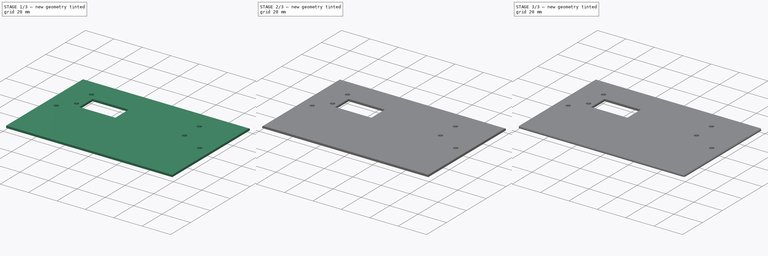
[diagram: build sequence overview — one tinted view per stage of 3, left to right]
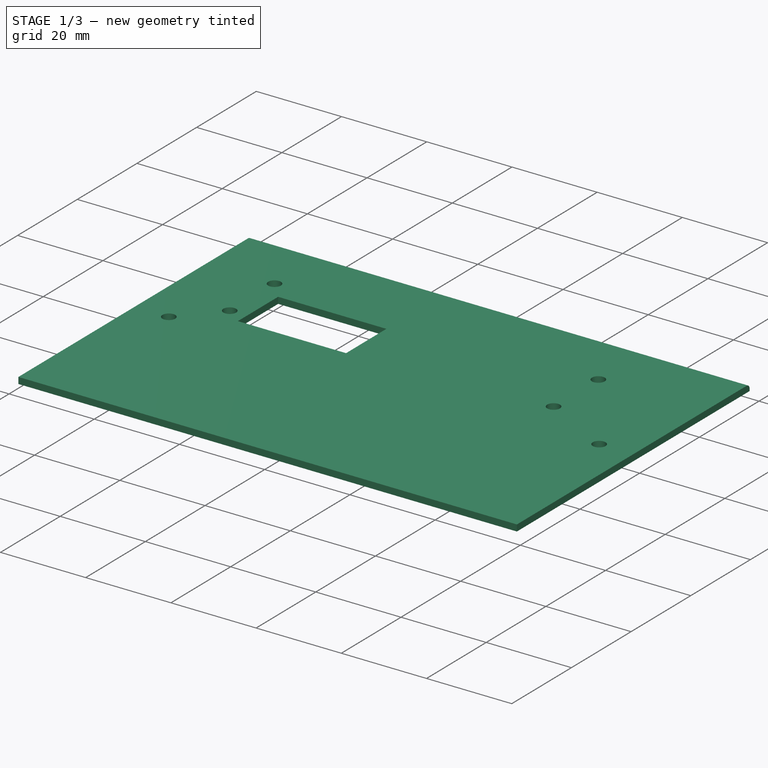
[diagram: stage 1 of 3 — iso view after this stage's code; geometry added in this stage tinted green]
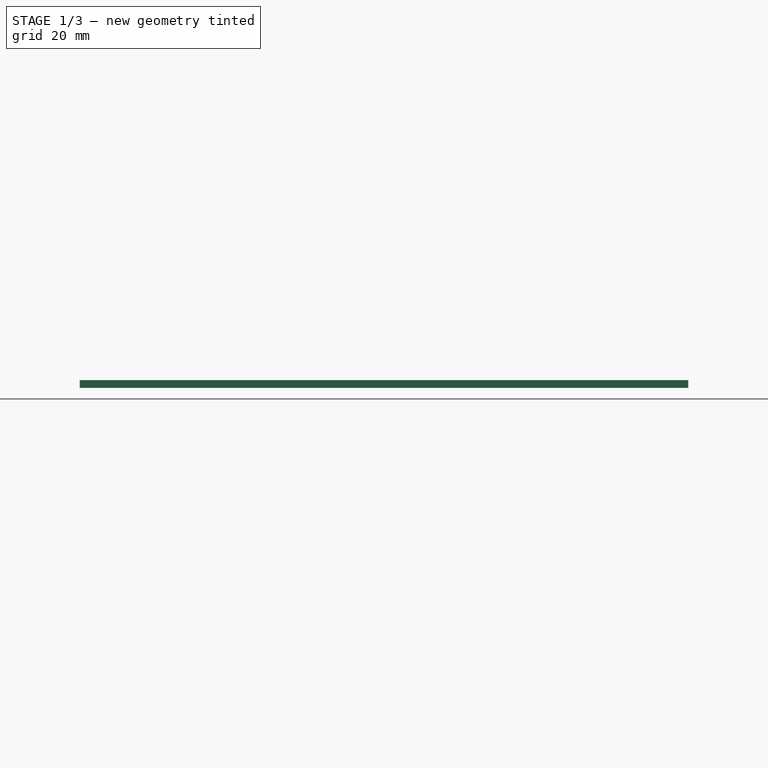
[diagram: stage 1 of 3 — front view after this stage's code; geometry added in this stage tinted green]
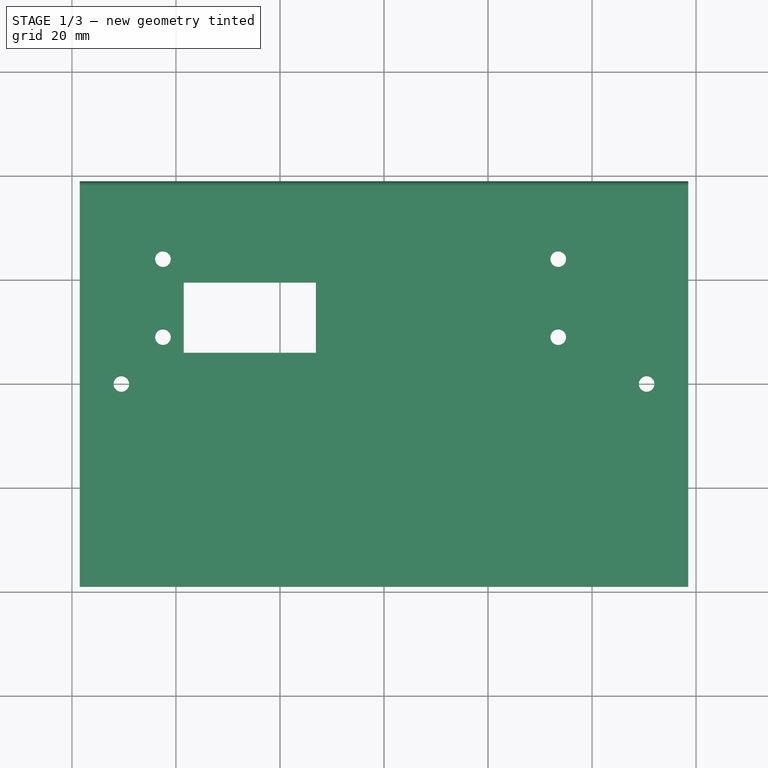
[diagram: stage 1 of 3 — top view after this stage's code; geometry added in this stage tinted green]
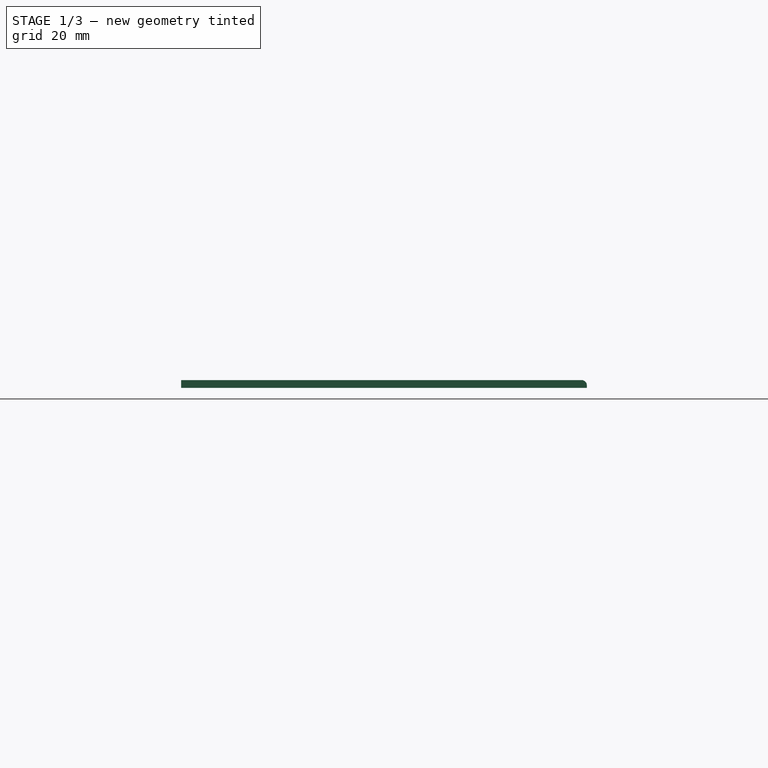
[diagram: stage 1 of 3 — right view after this stage's code; geometry added in this stage tinted green]
FCSTD DOCUMENT  (FreeCAD 0.19R24291 (Git))
Label: gateway box v1
License: All rights reserved
LicenseURL: http://en.wikipedia.org/wiki/All_rights_reserved
objects: TechDraw::DrawViewDimension×9, PartDesign::Fillet×4, Sketcher::SketchObject×1, PartDesign::Pad×1, TechDraw::DrawSVGTemplate×1, TechDraw::DrawViewPart×1, TechDraw::DrawPage×1, PartDesign::Body×1
note: 12 computed .brp shape members not serialized (recipe doc carries the construction recipe); baked Part::Feature solids carry a one-line shape summary decoded from their .brp

FEATURE [Sketcher::SketchObject] Sketch
  FullyConstrained = true
  MapMode = 5
  Support = -> [XY_Plane]
  sketch-geometry (15):
    g0: LineSegment StartX=-58.5 StartY=39 StartZ=0 EndX=58.5 EndY=39 EndZ=0
    g1: LineSegment StartX=58.5 StartY=39 StartZ=0 EndX=58.5 EndY=-39 EndZ=0
    g2: LineSegment StartX=58.5 StartY=-39 StartZ=0 EndX=-58.5 EndY=-39 EndZ=0
    g3: LineSegment StartX=-58.5 StartY=-39 StartZ=0 EndX=-58.5 EndY=39 EndZ=0
    g4: Circle CenterX=-50.5 CenterY=-3.7e-15 CenterZ=0 NormalX=0 NormalY=0 NormalZ=1 AngleXU=0 Radius=1.5
    g5: Circle CenterX=50.5 CenterY=-3.7e-15 CenterZ=0 NormalX=0 NormalY=0 NormalZ=1 AngleXU=0 Radius=1.5
    g6: Circle CenterX=-42.5 CenterY=24 CenterZ=0 NormalX=0 NormalY=0 NormalZ=1 AngleXU=0 Radius=1.5
    g7: Circle CenterX=-42.5 CenterY=9 CenterZ=0 NormalX=0 NormalY=0 NormalZ=1 AngleXU=0 Radius=1.5
    g8: Circle CenterX=33.5 CenterY=24 CenterZ=0 NormalX=0 NormalY=0 NormalZ=1 AngleXU=0 Radius=1.5
    g9: Circle CenterX=33.5 CenterY=9 CenterZ=0 NormalX=0 NormalY=0 NormalZ=1 AngleXU=0 Radius=1.5
    g10: LineSegment StartX=-38.5 StartY=19.5 StartZ=0 EndX=-13.1 EndY=19.5 EndZ=0
    g11: LineSegment StartX=-13.1 StartY=19.5 StartZ=0 EndX=-13.1 EndY=6 EndZ=0
    g12: LineSegment StartX=-13.1 StartY=6 StartZ=0 EndX=-38.5 EndY=6 EndZ=0
    g13: LineSegment StartX=-38.5 StartY=6 StartZ=0 EndX=-38.5 EndY=19.5 EndZ=0
    g14: GeomPoint X=-42.5 Y=24 Z=0
  constraints (42):
    c: Coincident(g0,g1)
    c: Coincident(g1,g2)
    c: Coincident(g2,g3)
    c: Coincident(g3,g0)
    c: Horizontal(g0)
    c: Horizontal(g2)
    c: Vertical(g1)
    c: Vertical(g3)
    c: DistanceX(g0,g0) = 117
    c: DistanceY(g3,g3) = 78
    c: Coincident(g10,g11)
    c: Coincident(g11,g12)
    c: Coincident(g12,g13)
    c: Coincident(g13,g10)
    c: Horizontal(g10)
    c: Horizontal(g12)
    c: Vertical(g11)
    c: Vertical(g13)
    c: Symmetric(g0,g1,g-1)
    c: Radius(g6) = 1.5
    c: Radius(g7) = 1.5
    c: Radius(g8) = 1.5
    c: Radius(g9) = 1.5
    c: DistanceX(g12,g12) = 25.4
    c: DistanceY(g11,g11) = 13.5
    c: DistanceY(g10,g0) = 19.5
    c: DistanceY(g6,g0) = 15
    c: DistanceY(g7,g6) = 15
    c: Vertical(g6,g7)
    c: Vertical(g8,g9)
    c: DistanceX(g0,g6) = 16
    c: DistanceX(g6,g8) = 76
    c: DistanceX(g0,g10) = 20
    c: Radius(g4) = 1.5
    c: Radius(g5) = 1.5
    c: DistanceX(g5,g0) = 8
    c: DistanceX(g0,g4) = 8
    c: Horizontal(g6,g8)
    c: Horizontal(g4,g5)
    c: Horizontal(g7,g9)
    c: DistanceY(g4,g0) = 39
    c: Coincident(g14,g6)
FEATURE [PartDesign::Pad] Pad
  Direction = (1,1,1)
  Length = 1.5
  Length2 = 100
  Profile = -> Sketch
  Type = 0
FEATURE [TechDraw::DrawSVGTemplate] Template
  EditableTexts = Designed_by_Name=Pete; Drawing_number=Naiad GW 001; FC-Date=26 July 2021; FC-SC=Scale; FC-SH=1 of 1; FC-Title=Gateway box lid with Oled; Weight=Weight
  Height = 210
  Orientation = 1
  Width = 297
FEATURE [TechDraw::DrawViewPart] View
  CoarseView = false
  Direction = (0,0,1)
  Focus = 100
  HardHidden = false
  IsoCount = 0
  IsoHidden = false
  IsoVisible = true
  LockPosition = false
  Perspective = false
  Rotation = 0
  ScaleType = 0
  SeamHidden = false
  SeamVisible = true
  SmoothHidden = false
  SmoothVisible = true
  Source = -> [Sketch]
  X = 100.82
  XDirection = (1,0,0)
  Y = 119.976
FEATURE [TechDraw::DrawViewDimension] Dimension
  Arbitrary = false
  ArbitraryTolerances = false
  EqualTolerance = true
  FormatSpec = %.2f
  FormatSpecOverTolerance = %+.2f
  FormatSpecUnderTolerance = %+.2f
  Inverted = false
  LockPosition = false
  MeasureType = 1
  OverTolerance = 0
  References2D = -> [View]
  Rotation = 0
  ScaleType = 0
  TheoreticalExact = false
  Type = 1
  UnderTolerance = 0
  X = -7.87783
  Y = 74.0988
FEATURE [TechDraw::DrawViewDimension] Dimension001
  Arbitrary = false
  ArbitraryTolerances = false
  EqualTolerance = true
  FormatSpec = %.2f
  FormatSpecOverTolerance = %+.2f
  FormatSpecUnderTolerance = %+.2f
  Inverted = false
  LockPosition = false
  MeasureType = 1
  OverTolerance = 0
  References2D = -> [View]
  Rotation = 0
  ScaleType = 0
  TheoreticalExact = false
  Type = 1
  UnderTolerance = 0
  X = -50.8407
  Y = 48.2925
FEATURE [TechDraw::DrawViewDimension] Dimension002
  Arbitrary = false
  ArbitraryTolerances = false
  EqualTolerance = true
  FormatSpec = %.2f
  FormatSpecOverTolerance = %+.2f
  FormatSpecUnderTolerance = %+.2f
  Inverted = false
  LockPosition = false
  MeasureType = 1
  OverTolerance = 0
  References2D = -> [View]
  Rotation = 0
  ScaleType = 0
  TheoreticalExact = false
  Type = 1
  UnderTolerance = 0
  X = -49.53
  Y = 54.72
FEATURE [TechDraw::DrawViewDimension] Dimension003
  Arbitrary = false
  ArbitraryTolerances = false
  EqualTolerance = true
  FormatSpec = %.2f
  FormatSpecOverTolerance = %+.2f
  FormatSpecUnderTolerance = %+.2f
  Inverted = false
  LockPosition = false
  MeasureType = 1
  OverTolerance = 0
  References2D = -> [View]
  Rotation = 0
  ScaleType = 0
  TheoreticalExact = false
  Type = 1
  UnderTolerance = 0
  X = -31.996
  Y = 60.9611
FEATURE [TechDraw::DrawViewDimension] Dimension004
  Arbitrary = false
  ArbitraryTolerances = false
  EqualTolerance = true
  FormatSpec = %.2f
  FormatSpecOverTolerance = %+.2f
  FormatSpecUnderTolerance = %+.2f
  Inverted = false
  LockPosition = false
  MeasureType = 1
  OverTolerance = 0
  References2D = -> [View]
  Rotation = 0
  ScaleType = 0
  TheoreticalExact = false
  Type = 2
  UnderTolerance = 0
  X = -65.4602
  Y = 33.2489
FEATURE [TechDraw::DrawViewDimension] Dimension005
  Arbitrary = false
  ArbitraryTolerances = false
  EqualTolerance = true
  FormatSpec = %.2f
  FormatSpecOverTolerance = %+.2f
  FormatSpecUnderTolerance = %+.2f
  Inverted = false
  LockPosition = false
  MeasureType = 1
  OverTolerance = 0
  References2D = -> [View]
  Rotation = 0
  ScaleType = 0
  TheoreticalExact = false
  Type = 2
  UnderTolerance = 0
  X = -71.3667
  Y = 31.4681
FEATURE [TechDraw::DrawViewDimension] Dimension006
  Arbitrary = false
  ArbitraryTolerances = false
  EqualTolerance = true
  FormatSpec = %.2f
  FormatSpecOverTolerance = %+.2f
  FormatSpecUnderTolerance = %+.2f
  Inverted = false
  LockPosition = false
  MeasureType = 1
  OverTolerance = 0
  References2D = -> [View]
  Rotation = 0
  ScaleType = 0
  TheoreticalExact = false
  Type = 2
  UnderTolerance = 0
  X = -85.4205
  Y = 24.5048
FEATURE [TechDraw::DrawViewDimension] Dimension007
  Arbitrary = false
  ArbitraryTolerances = false
  EqualTolerance = true
  FormatSpec = %.2f
  FormatSpecOverTolerance = %+.2f
  FormatSpecUnderTolerance = %+.2f
  Inverted = false
  LockPosition = false
  MeasureType = 1
  OverTolerance = 0
  References2D = -> [View]
  Rotation = 0
  ScaleType = 0
  TheoreticalExact = false
  Type = 2
  UnderTolerance = 0
  X = -78.0008
  Y = 23.4028
FEATURE [TechDraw::DrawViewDimension] Dimension008
  Arbitrary = false
  ArbitraryTolerances = false
  EqualTolerance = true
  FormatSpec = %.2f
  FormatSpecOverTolerance = %+.2f
  FormatSpecUnderTolerance = %+.2f
  Inverted = false
  LockPosition = false
  MeasureType = 1
  OverTolerance = 0
  References2D = -> [View]
  Rotation = 0
  ScaleType = 0
  TheoreticalExact = false
  Type = 1
  UnderTolerance = 0
  X = -14.5842
  Y = 67.5081
FEATURE [TechDraw::DrawPage] Page
  KeepUpdated = true
  NextBalloonIndex = 1
  ProjectionType = 0
  Template = -> Template
  Views = -> [View,Dimension,Dimension001,Dimension002,Dimension003,Dimension004,Dimension005,Dimension006,Dimension007,Dimension008]
FEATURE [PartDesign::Fillet] Fillet
  Base = -> Pad [Edge4]
  BaseFeature = -> Pad
  Radius = 1
  SupportTransform = false
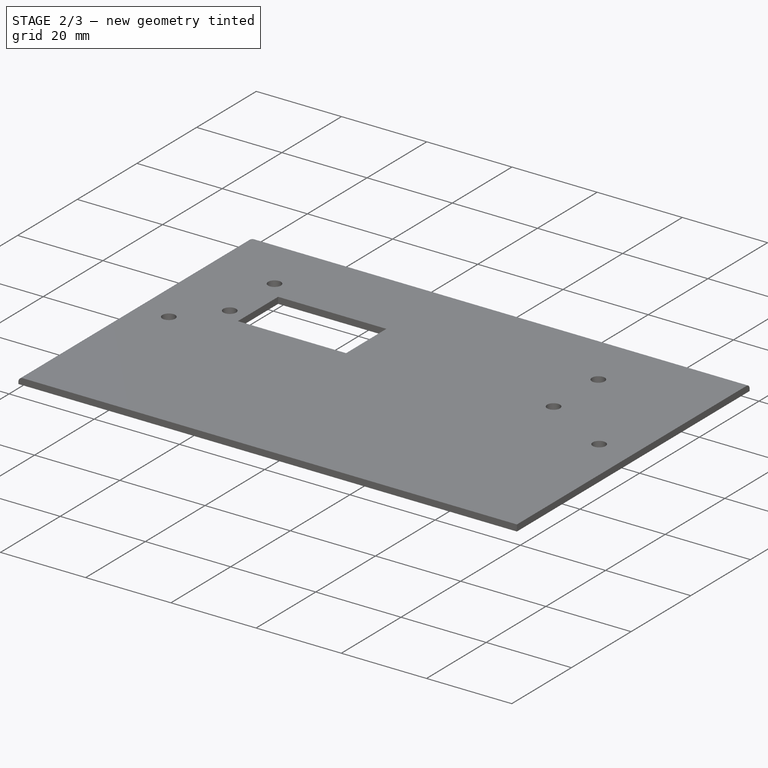
[diagram: stage 2 of 3 — iso view after this stage's code; geometry added in this stage tinted green]
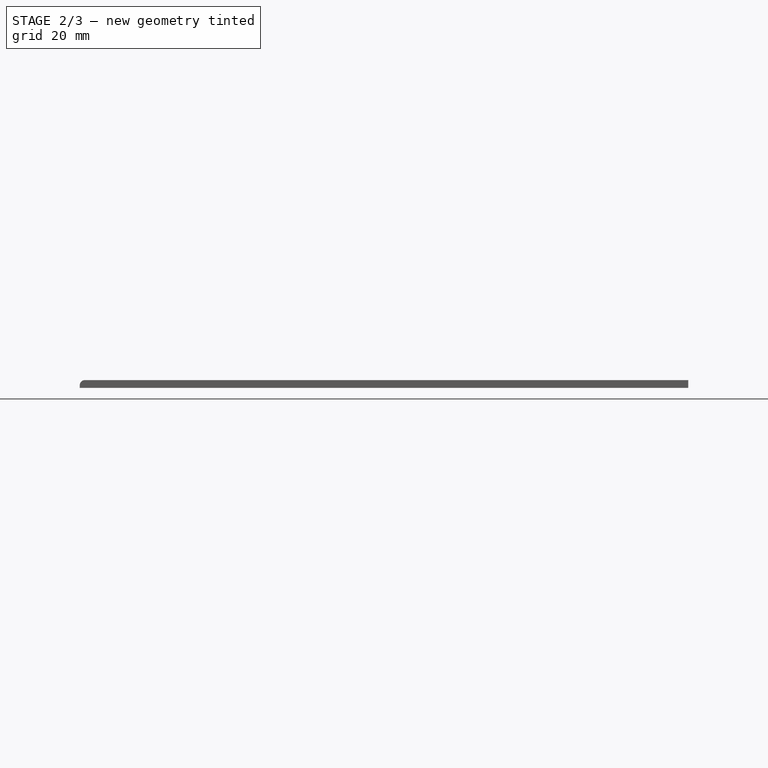
[diagram: stage 2 of 3 — front view after this stage's code; geometry added in this stage tinted green]
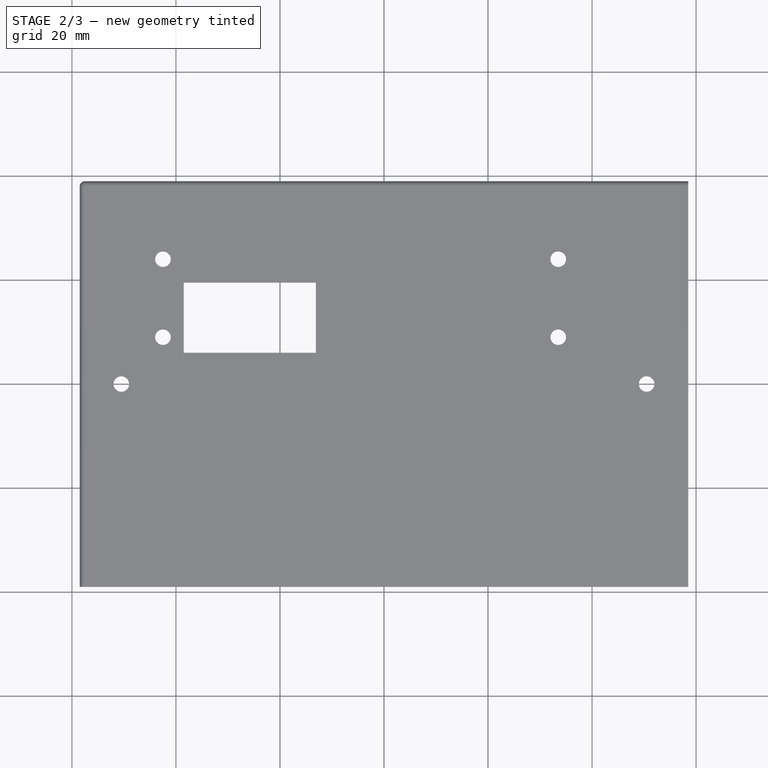
[diagram: stage 2 of 3 — top view after this stage's code; geometry added in this stage tinted green]
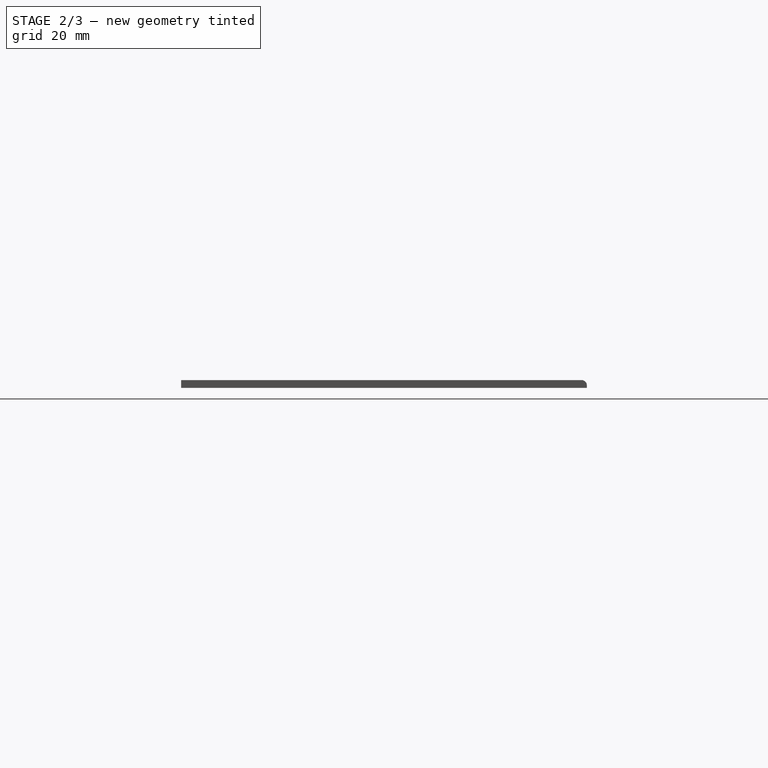
[diagram: stage 2 of 3 — right view after this stage's code; geometry added in this stage tinted green]
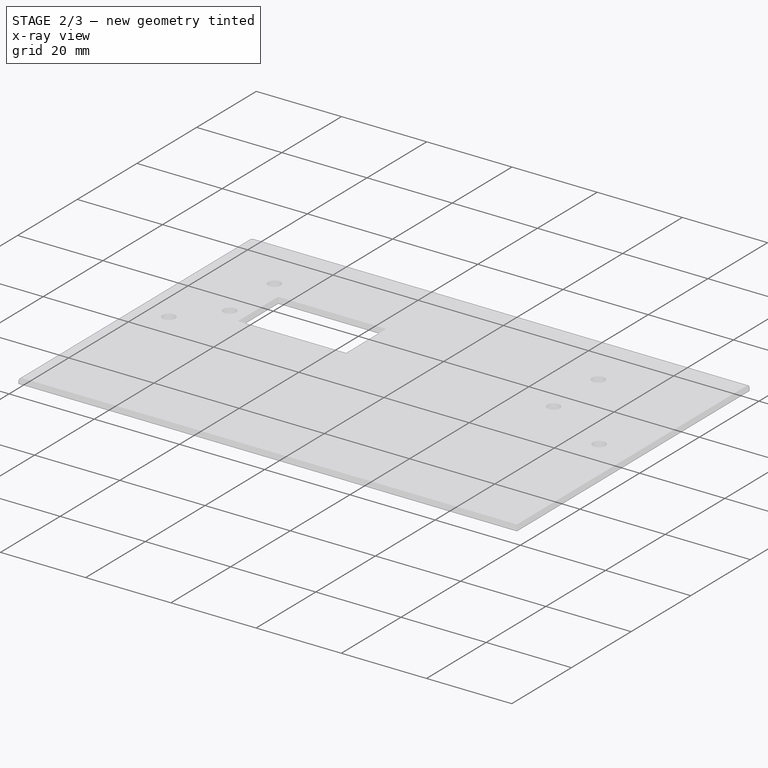
[diagram: stage 2 of 3 — x-ray composite at the iso view; earlier geometry ghosted, this stage's added geometry solid]
FEATURE [PartDesign::Fillet] Fillet001
  Base = -> Fillet [Edge7]
  BaseFeature = -> Fillet
  Radius = 1
  SupportTransform = false
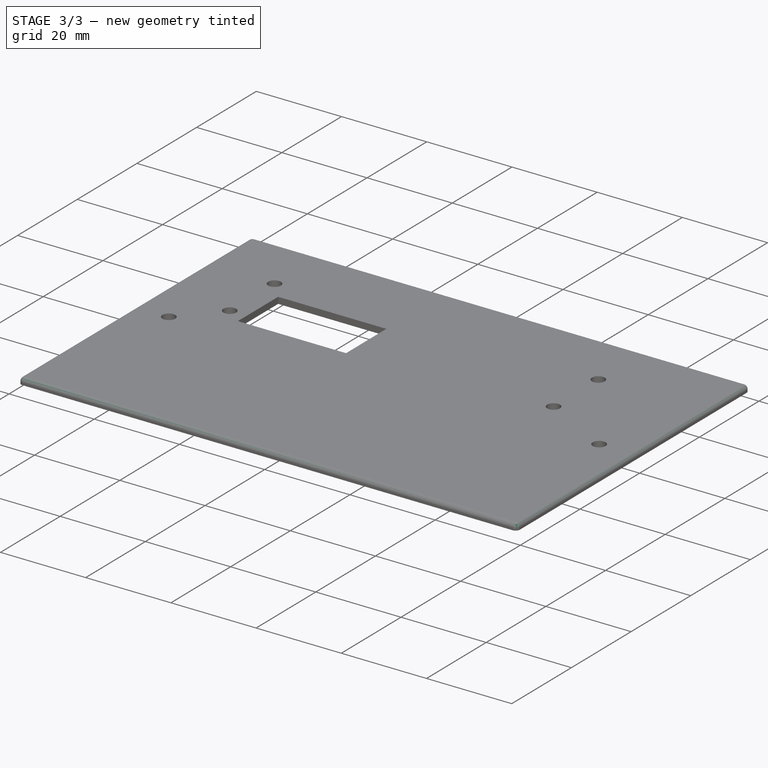
[diagram: stage 3 of 3 — iso view after this stage's code; geometry added in this stage tinted green]
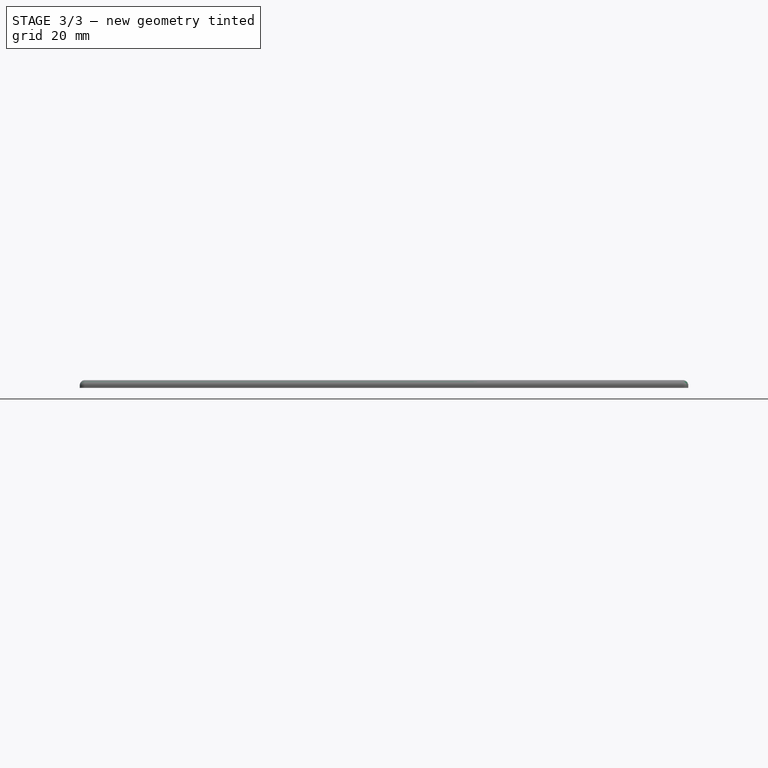
[diagram: stage 3 of 3 — front view after this stage's code; geometry added in this stage tinted green]
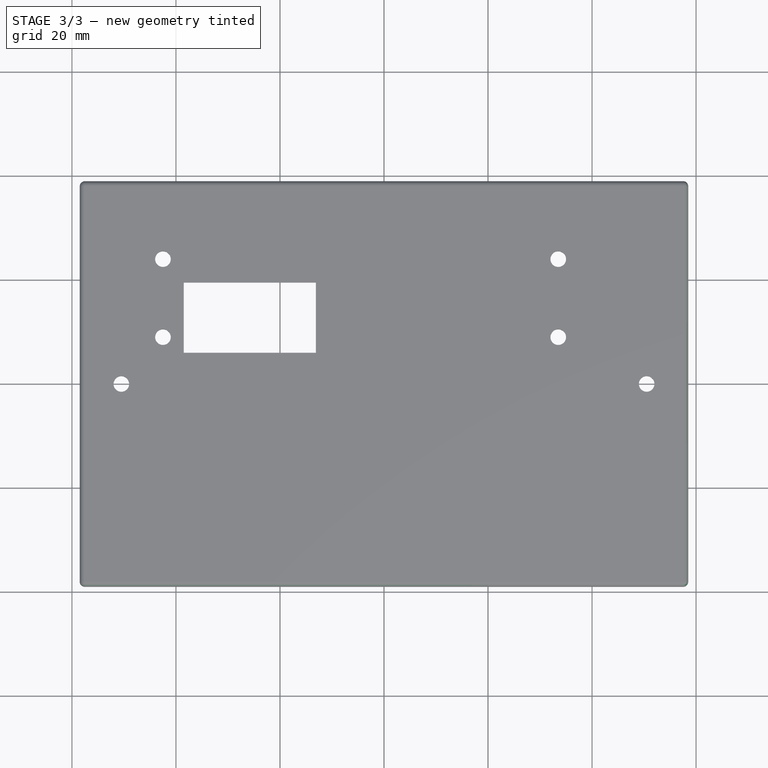
[diagram: stage 3 of 3 — top view after this stage's code; geometry added in this stage tinted green]
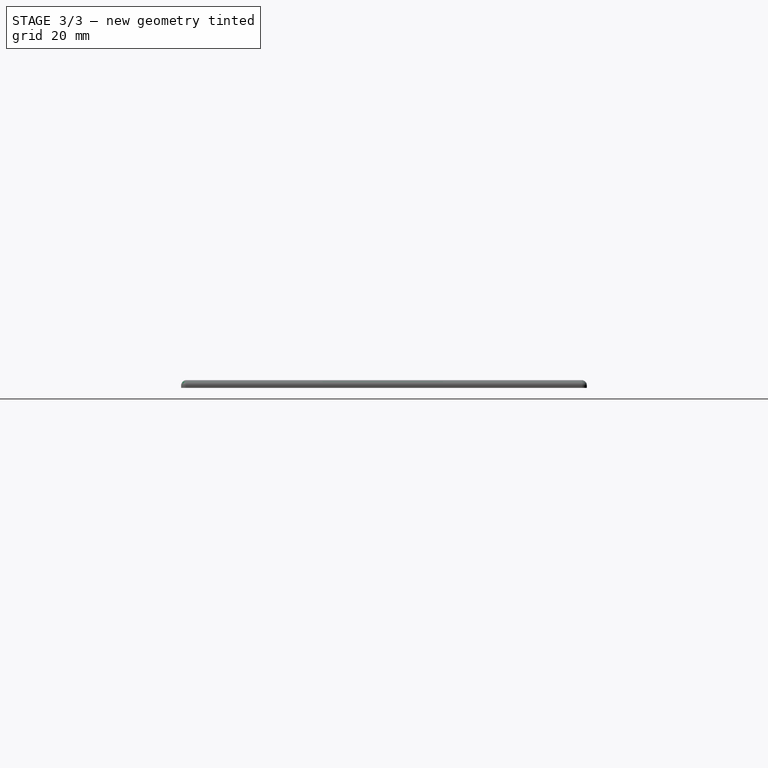
[diagram: stage 3 of 3 — right view after this stage's code; geometry added in this stage tinted green]
FEATURE [PartDesign::Fillet] Fillet002
  Base = -> Fillet001 [Edge29]
  BaseFeature = -> Fillet001
  Radius = 1
  SupportTransform = false
FEATURE [PartDesign::Fillet] Fillet003
  Base = -> Fillet002 [Edge1]
  BaseFeature = -> Fillet002
  Radius = 1
  SupportTransform = false
FEATURE [PartDesign::Body] Body
  Group = -> [Sketch,Pad,Fillet,Fillet001,Fillet002,Fillet003]
  Origin = -> Origin
  Tip = -> Fillet003
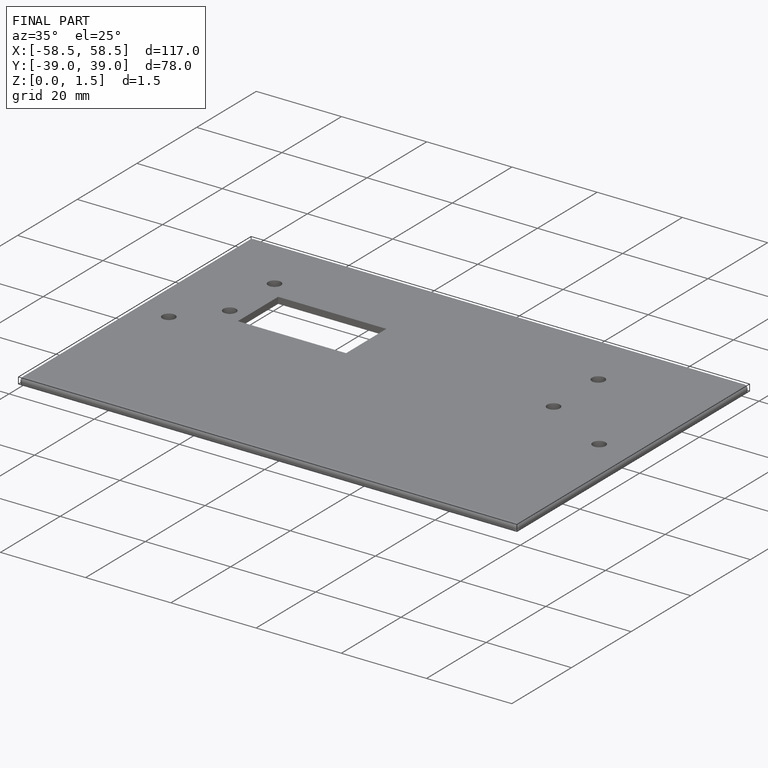
[diagram: finished part — iso view with bounding-box wireframe]
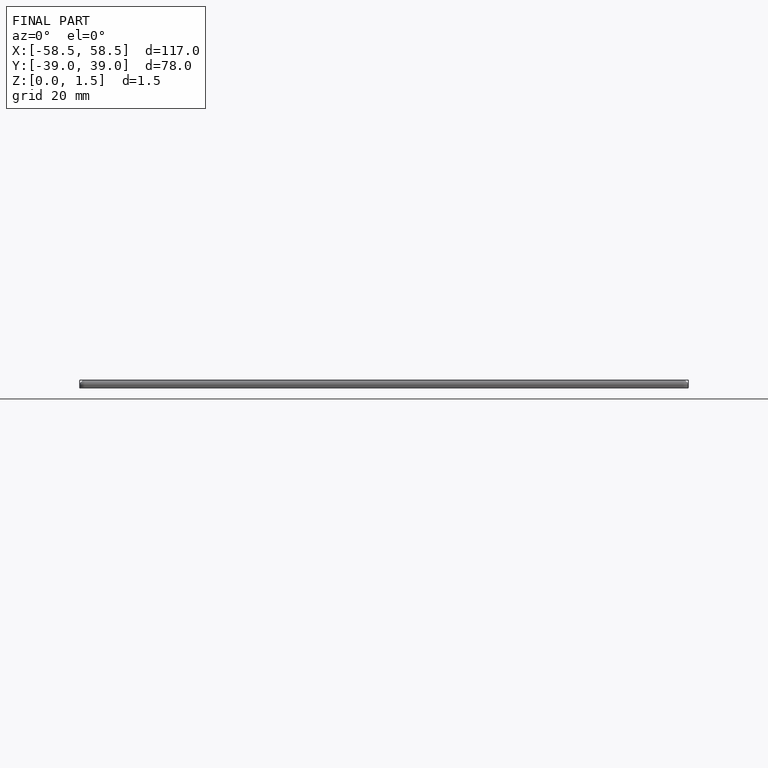
[diagram: finished part — front view with bounding-box wireframe]
